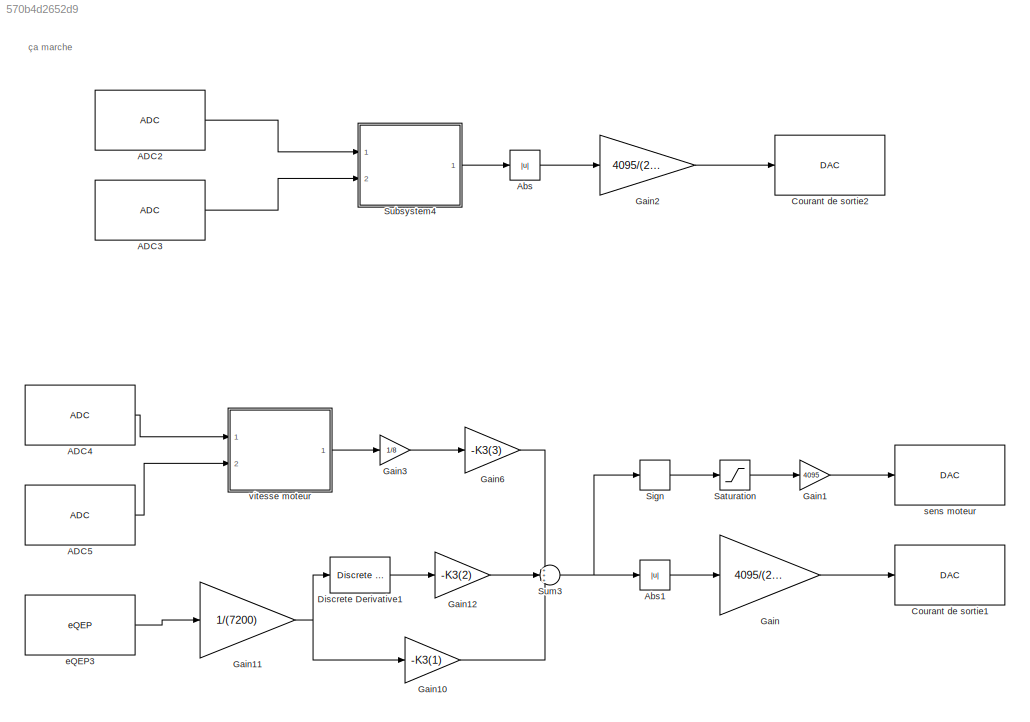
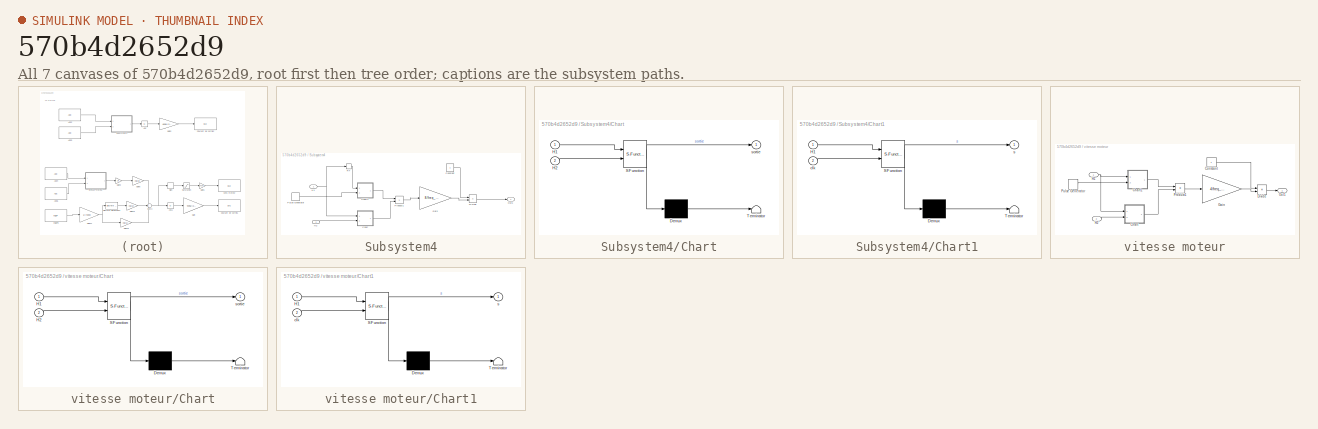
[diagram: thumbnail index - all 7 canvases of the model, root first then tree order]
MODEL slx_570b4d2652d9
KIND model
CONFIG AbsTol = auto
CONFIG EnableMultiTasking = on
CONFIG FixedStep = auto
CONFIG MaxStep = auto
CONFIG MinStep = auto
CONFIG RelTol = 1e-3
CONFIG SampleTimeConstraint = Unconstrained
CONFIG Solver = FixedStepDiscrete
CONFIG SolverName = FixedStepDiscrete
CONFIG StartTime = 0.0
CONFIG StopTime = Inf
BLOCK [Reference] ADC2  REF=c2802xlib/ADC
  Commented = on
  Ports = [0, 1]
  SourceBlock = c2802xlib/ADC
  SourceProductBaseCode = TIC2000
  SourceProductName = Embedded Coder Support Package for Texas Instruments C2000 Processors
  SourceType = C2802x/03x/05x/06x/M3x/37x/07x/004x ADC
  UserDataPersistent = on
BLOCK [Reference] ADC3  REF=c2802xlib/ADC
  Commented = on
  Ports = [0, 1]
  SourceBlock = c2802xlib/ADC
  SourceProductBaseCode = TIC2000
  SourceProductName = Embedded Coder Support Package for Texas Instruments C2000 Processors
  SourceType = C2802x/03x/05x/06x/M3x/37x/07x/004x ADC
  UserDataPersistent = on
BLOCK [Reference] ADC4  REF=c2802xlib/ADC
  Ports = [0, 1]
  SourceBlock = c2802xlib/ADC
  SourceProductBaseCode = TIC2000
  SourceProductName = Embedded Coder Support Package for Texas Instruments C2000 Processors
  SourceType = C2802x/03x/05x/06x/M3x/37x/07x/004x ADC
  UserDataPersistent = on
BLOCK [Reference] ADC5  REF=c2802xlib/ADC
  Ports = [0, 1]
  SourceBlock = c2802xlib/ADC
  SourceProductBaseCode = TIC2000
  SourceProductName = Embedded Coder Support Package for Texas Instruments C2000 Processors
  SourceType = C2802x/03x/05x/06x/M3x/37x/07x/004x ADC
  UserDataPersistent = on
BLOCK [Abs] Abs
  Commented = on
  SaturateOnIntegerOverflow = off
BLOCK [Abs] Abs1
  SaturateOnIntegerOverflow = off
BLOCK [Reference] Courant de sortie1  REF=c2837xDlib/DAC
  Ports = [1]
  SourceBlock = c2837xDlib/DAC
  SourceProductBaseCode = TIC2000
  SourceProductName = Embedded Coder Support Package for Texas Instruments C2000 Processors
  SourceType = codertarget.tic2000.blocks.DACWrite
BLOCK [Reference] Courant de sortie2  REF=c2837xDlib/DAC
  Commented = on
  Ports = [1]
  SourceBlock = c2837xDlib/DAC
  SourceProductBaseCode = TIC2000
  SourceProductName = Embedded Coder Support Package for Texas Instruments C2000 Processors
  SourceType = codertarget.tic2000.blocks.DACWrite
BLOCK [Reference] Discrete Derivative1  REF=simulink/Discrete/Discrete Derivative
  Ports = [1, 1]
  SourceBlock = simulink/Discrete/Discrete Derivative
  SourceProductBaseCode = SL
  SourceProductName = Simulink
  SourceType = Discrete Derivative
BLOCK [Gain] Gain
  Gain = 4095/(2*(2/650))
  OutDataTypeStr = Inherit: Inherit via internal rule
  ParamDataTypeStr = Inherit: Inherit via internal rule
  SaturateOnIntegerOverflow = off
BLOCK [Gain] Gain1
  Gain = 4095
  OutDataTypeStr = Inherit: Inherit via internal rule
  ParamDataTypeStr = Inherit: Inherit via internal rule
  SaturateOnIntegerOverflow = off
BLOCK [Gain] Gain10
  Gain = -K3(1)
  ParamDataTypeStr = Inherit: Inherit via internal rule
  SaturateOnIntegerOverflow = off
BLOCK [Gain] Gain11
  Gain = 1/(7200)
  OutDataTypeStr = Inherit: Inherit via internal rule
  ParamDataTypeStr = Inherit: Inherit via internal rule
  SaturateOnIntegerOverflow = off
BLOCK [Gain] Gain12
  Gain = -K3(2)
  OutDataTypeStr = Inherit: Inherit via internal rule
  SaturateOnIntegerOverflow = off
BLOCK [Gain] Gain2
  Commented = on
  Gain = 4095/(2*10)
  OutDataTypeStr = Inherit: Inherit via internal rule
  ParamDataTypeStr = Inherit: Inherit via internal rule
  SaturateOnIntegerOverflow = off
BLOCK [Gain] Gain3
  Gain = 1/8
  OutDataTypeStr = Inherit: Inherit via internal rule
  ParamDataTypeStr = Inherit: Inherit via internal rule
  SaturateOnIntegerOverflow = off
BLOCK [Gain] Gain6
  Gain = -K3(3)
  OutDataTypeStr = Inherit: Inherit via internal rule
  ParamDataTypeStr = Inherit: Inherit via internal rule
  SaturateOnIntegerOverflow = off
BLOCK [Saturate] Saturation
  InputPortMap = u0
  LowerLimit = 0
  Ports = [1, 1]
  UpperLimit = 2
BLOCK [Signum] Sign
BLOCK [SubSystem] Subsystem4
  Commented = on
  Ports = [2, 1]
  RequestExecContextInheritance = off
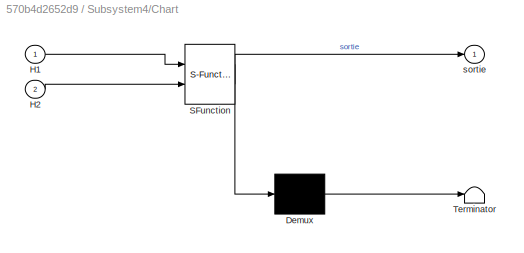
BLOCK [SubSystem] Subsystem4/Chart
  ErrorFcn = Stateflow.Translate.translate
  PermitHierarchicalResolution = ExplicitOnly
  Ports = [2, 1]
  RequestExecContextInheritance = off
  SFBlockType = Chart
  TreatAsAtomicUnit = on
BLOCK [Demux] Subsystem4/Chart/ Demux 
  Outputs = 1
  Ports = [1, 1]
BLOCK [S-Function] Subsystem4/Chart/ SFunction 
  EnableBusSupport = off
  FunctionName = sf_sfun
  PortCounts = [2 2]
  Ports = [2, 2]
  SFcnIsStateOwnerBlock = off
  SFunctionDeploymentMode = off
  Tag = Stateflow S-Function commandemoteur 9
BLOCK [Terminator] Subsystem4/Chart/ Terminator 
BLOCK [Inport] Subsystem4/Chart/H1
  IconDisplay = Port number
BLOCK [Inport] Subsystem4/Chart/H2
  IconDisplay = Port number
  Port = 2
BLOCK [Outport] Subsystem4/Chart/sortie
  IconDisplay = Port number
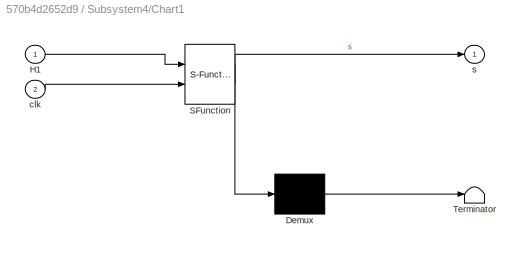
BLOCK [SubSystem] Subsystem4/Chart1
  ErrorFcn = Stateflow.Translate.translate
  PermitHierarchicalResolution = ExplicitOnly
  Ports = [2, 1]
  RequestExecContextInheritance = off
  SFBlockType = Chart
  TreatAsAtomicUnit = on
BLOCK [Demux] Subsystem4/Chart1/ Demux 
  Outputs = 1
  Ports = [1, 1]
BLOCK [S-Function] Subsystem4/Chart1/ SFunction 
  EnableBusSupport = off
  FunctionName = sf_sfun
  PortCounts = [2 2]
  Ports = [2, 2]
  SFcnIsStateOwnerBlock = off
  SFunctionDeploymentMode = off
  Tag = Stateflow S-Function commandemoteur 10
BLOCK [Terminator] Subsystem4/Chart1/ Terminator 
BLOCK [Inport] Subsystem4/Chart1/H1
  IconDisplay = Port number
BLOCK [Inport] Subsystem4/Chart1/clk
  IconDisplay = Port number
  Port = 2
BLOCK [Outport] Subsystem4/Chart1/s
  IconDisplay = Port number
BLOCK [Constant] Subsystem4/Constant
BLOCK [Product] Subsystem4/Divide
  InputSameDT = off
  Inputs = */
  OutDataTypeStr = Inherit: Inherit via internal rule
  Ports = [2, 1]
  RndMeth = Floor
  SaturateOnIntegerOverflow = off
BLOCK [Gain] Subsystem4/Gain
  Gain = 8/freq_proc
  OutDataTypeStr = Inherit: Inherit via internal rule
  ParamDataTypeStr = Inherit: Inherit via internal rule
  SaturateOnIntegerOverflow = off
BLOCK [Inport] Subsystem4/H1 
  IconDisplay = Port number
BLOCK [Inport] Subsystem4/H2 
  IconDisplay = Port number
  Port = 2
BLOCK [Outport] Subsystem4/Out1
  IconDisplay = Port number
BLOCK [Product] Subsystem4/Product1
  InputSameDT = off
  OutDataTypeStr = Inherit: Inherit via internal rule
  Ports = [2, 1]
  RndMeth = Floor
  SaturateOnIntegerOverflow = off
BLOCK [DiscretePulseGenerator] Subsystem4/Pulse Generator
  Period = 1/freq_proc
  Ports = [0, 1]
  PulseType = Time based
  PulseWidth = 50
BLOCK [RateTransition] Subsystem4/RT
  Commented = through
  OutPortSampleTime = 0.0005
BLOCK [Sum] Sum3
  IconShape = round
  InputSameDT = off
  Inputs = +++
  OutDataTypeStr = Inherit: Inherit via internal rule
  Ports = [3, 1]
  SaturateOnIntegerOverflow = off
BLOCK [Reference] eQEP3  REF=c280xlib/eQEP
  Ports = [0, 1]
  SourceBlock = c280xlib/eQEP
  SourceProductBaseCode = TIC2000
  SourceProductName = Embedded Coder Support Package for Texas Instruments C2000 Processors
  SourceType = C28x eQEP
BLOCK [Reference] sens moteur  REF=c2837xDlib/DAC
  Ports = [1]
  SourceBlock = c2837xDlib/DAC
  SourceProductBaseCode = TIC2000
  SourceProductName = Embedded Coder Support Package for Texas Instruments C2000 Processors
  SourceType = codertarget.tic2000.blocks.DACWrite
BLOCK [SubSystem] vitesse moteur
  Ports = [2, 1]
  RequestExecContextInheritance = off
BLOCK [SubSystem] vitesse moteur/Chart
  ErrorFcn = Stateflow.Translate.translate
  PermitHierarchicalResolution = ExplicitOnly
  Ports = [2, 1]
  RequestExecContextInheritance = off
  SFBlockType = Chart
  TreatAsAtomicUnit = on
BLOCK [Demux] vitesse moteur/Chart/ Demux 
  Outputs = 1
  Ports = [1, 1]
BLOCK [S-Function] vitesse moteur/Chart/ SFunction 
  EnableBusSupport = off
  FunctionName = sf_sfun
  PortCounts = [2 2]
  Ports = [2, 2]
  SFcnIsStateOwnerBlock = off
  SFunctionDeploymentMode = off
  Tag = Stateflow S-Function commandemoteur 2
BLOCK [Terminator] vitesse moteur/Chart/ Terminator 
BLOCK [Inport] vitesse moteur/Chart/H1
  IconDisplay = Port number
BLOCK [Inport] vitesse moteur/Chart/H2
  IconDisplay = Port number
  Port = 2
BLOCK [Outport] vitesse moteur/Chart/sortie
  IconDisplay = Port number
BLOCK [SubSystem] vitesse moteur/Chart1
  ErrorFcn = Stateflow.Translate.translate
  PermitHierarchicalResolution = ExplicitOnly
  Ports = [2, 1]
  RequestExecContextInheritance = off
  SFBlockType = Chart
  TreatAsAtomicUnit = on
BLOCK [Demux] vitesse moteur/Chart1/ Demux 
  Outputs = 1
  Ports = [1, 1]
BLOCK [S-Function] vitesse moteur/Chart1/ SFunction 
  EnableBusSupport = off
  FunctionName = sf_sfun
  PortCounts = [2 2]
  Ports = [2, 2]
  SFcnIsStateOwnerBlock = off
  SFunctionDeploymentMode = off
  Tag = Stateflow S-Function commandemoteur 4
BLOCK [Terminator] vitesse moteur/Chart1/ Terminator 
BLOCK [Inport] vitesse moteur/Chart1/H1
  IconDisplay = Port number
BLOCK [Inport] vitesse moteur/Chart1/clk
  IconDisplay = Port number
  Port = 2
BLOCK [Outport] vitesse moteur/Chart1/s
  IconDisplay = Port number
BLOCK [Constant] vitesse moteur/Constant
BLOCK [Product] vitesse moteur/Divide
  InputSameDT = off
  Inputs = */
  OutDataTypeStr = Inherit: Inherit via internal rule
  Ports = [2, 1]
  RndMeth = Floor
  SaturateOnIntegerOverflow = off
BLOCK [Gain] vitesse moteur/Gain
  Gain = 4/freq_proc
  OutDataTypeStr = Inherit: Inherit via internal rule
  ParamDataTypeStr = Inherit: Inherit via internal rule
  SaturateOnIntegerOverflow = off
BLOCK [Inport] vitesse moteur/H1 
  IconDisplay = Port number
BLOCK [Inport] vitesse moteur/H2 
  IconDisplay = Port number
  Port = 2
BLOCK [Outport] vitesse moteur/Out1
  IconDisplay = Port number
BLOCK [Product] vitesse moteur/Product1
  InputSameDT = off
  OutDataTypeStr = Inherit: Inherit via internal rule
  Ports = [2, 1]
  RndMeth = Floor
  SaturateOnIntegerOverflow = off
BLOCK [DiscretePulseGenerator] vitesse moteur/Pulse Generator
  Period = 1/freq_proc
  Ports = [0, 1]
  PulseType = Time based
  PulseWidth = 50
ANNOTATION (root): ça marche
LINE ADC2:1 -> Subsystem4:1
LINE ADC3:1 -> Subsystem4:2
LINE ADC4:1 -> vitesse moteur:1
LINE ADC5:1 -> vitesse moteur:2
LINE Abs1:1 -> Gain:1
LINE Abs:1 -> Gain2:1
LINE Discrete Derivative1:1 -> Gain12:1
LINE Gain10:1 -> Sum3:3
NET Gain11:1 -> Discrete Derivative1:1, Gain10:1
LINE Gain12:1 -> Sum3:2
LINE Gain1:1 -> sens moteur:1
LINE Gain2:1 -> Courant de sortie2:1
LINE Gain3:1 -> Gain6:1
LINE Gain6:1 -> Sum3:1
LINE Gain:1 -> Courant de sortie1:1
LINE Saturation:1 -> Gain1:1
LINE Sign:1 -> Saturation:1
LINE Subsystem4/Chart1:1 -> Subsystem4/Product1:1
LINE Subsystem4/Chart:1 -> Subsystem4/Product1:2
LINE Subsystem4/Constant:1 -> Subsystem4/Divide:1
LINE Subsystem4/Divide:1 -> Subsystem4/Out1:1
LINE Subsystem4/Gain:1 -> Subsystem4/Divide:2
NET Subsystem4/H1 :1 -> Subsystem4/Chart:1, Subsystem4/RT:1
LINE Subsystem4/H2 :1 -> Subsystem4/Chart:2
LINE Subsystem4/Product1:1 -> Subsystem4/Gain:1
LINE Subsystem4/Pulse Generator:1 -> Subsystem4/Chart1:2
LINE Subsystem4/RT:1 -> Subsystem4/Chart1:1
LINE Subsystem4:1 -> Abs:1
NET Sum3:1 -> Abs1:1, Sign:1
LINE eQEP3:1 -> Gain11:1
LINE vitesse moteur/Chart1:1 -> vitesse moteur/Product1:1
LINE vitesse moteur/Chart:1 -> vitesse moteur/Product1:2
LINE vitesse moteur/Constant:1 -> vitesse moteur/Divide:1
LINE vitesse moteur/Divide:1 -> vitesse moteur/Out1:1
LINE vitesse moteur/Gain:1 -> vitesse moteur/Divide:2
NET vitesse moteur/H1 :1 -> vitesse moteur/Chart1:1, vitesse moteur/Chart:1
LINE vitesse moteur/H2 :1 -> vitesse moteur/Chart:2
LINE vitesse moteur/Product1:1 -> vitesse moteur/Gain:1
LINE vitesse moteur/Pulse Generator:1 -> vitesse moteur/Chart1:2
LINE vitesse moteur:1 -> Gain3:1
note: NET lines group one-source signal fan-out (src -> all destinations, sorted); 1:1 wires keep LINE
CHART vitesse moteur/Chart states=15 transitions=22
  STATE_LABEL 'Test3\nentry: sortie=1000;'
  STATE_LABEL 'Test1\n'
  STATE_LABEL 'bas1\nentry: temp = H2;'
  STATE_LABEL 'haut1\nentry: temp = H2;'
  STATE_LABEL 'haut1descend2\nentry: sortie=-1;'
  STATE_LABEL 'bas1montant2\nentry: sortie=-1;'
  STATE_LABEL 'bas1descend2\nentry: sortie=1;'
  STATE_LABEL 'haut1montant2\nentry: sortie=1;'
  STATE_LABEL 'Test2\n'
  STATE_LABEL 'bas2\nentry: temp = H1;'
  STATE_LABEL 'bas2descend1\nentry: sortie=-1;'
  STATE_LABEL 'haut2\nentry: temp = H1;'
  STATE_LABEL 'haut2montant1\nentry: sortie=-1;'
  STATE_LABEL 'bas2montant1\nentry: sortie=1;'
  STATE_LABEL 'haut2descend1\nentry: sortie=1;'
CHART vitesse moteur/Chart1 states=9 transitions=12
  STATE_LABEL 'bot1\nentry: s = 0;\nentry: compteur=-1;\n'
  STATE_LABEL 'top\nentry: compteur=compteur+1;\n'
  STATE_LABEL 'top2\n\n'
  STATE_LABEL 'wait'
  STATE_LABEL 'top1\nentry: s=compteur;\n compteur=-1;\n'
  STATE_LABEL 'top3\nentry: compteur=compteur+1;\n\n'
  STATE_LABEL 'top4\n\n'
  STATE_LABEL 'wait1'
  STATE_LABEL 'top5\nentry: s=compteur;\n compteur=-1;\n'
CHART Subsystem4/Chart states=15 transitions=22
  STATE_LABEL 'Test3\nentry: sortie=1000;'
  STATE_LABEL 'Test1\n'
  STATE_LABEL 'bas1\nentry: temp = H2;'
  STATE_LABEL 'haut1\nentry: temp = H2;'
  STATE_LABEL 'bas1descend2\nentry: sortie=1;'
  STATE_LABEL 'bas1montant2\nentry: sortie=-1;'
  STATE_LABEL 'haut1descend2\nentry: sortie=-1;'
  STATE_LABEL 'haut1montant2\nentry: sortie=1;'
  STATE_LABEL 'Test2\n'
  STATE_LABEL 'bas2\nentry: temp = H1;'
  STATE_LABEL 'haut2\nentry: temp = H1;'
  STATE_LABEL 'bas2descend1\nentry: sortie=-1;'
  STATE_LABEL 'bas2montant1\nentry: sortie=1;'
  STATE_LABEL 'haut2descend1\nentry: sortie=1;'
  STATE_LABEL 'haut2montant1\nentry: sortie=-1;'
CHART Subsystem4/Chart1 states=9 transitions=12
  STATE_LABEL 'bot1\nentry: s = 0;\nentry: compteur=-1;\n'
  STATE_LABEL 'top\nentry: compteur=compteur+1;\n'
  STATE_LABEL 'top2\n\n'
  STATE_LABEL 'wait'
  STATE_LABEL 'top3\nentry: compteur=compteur+1;\n\n'
  STATE_LABEL 'top4\n\n'
  STATE_LABEL 'top1\nentry: s=compteur;\n compteur=-1;\n'
  STATE_LABEL 'wait1'
  STATE_LABEL 'top5\nentry: s=compteur;\n compteur=-1;\n'
